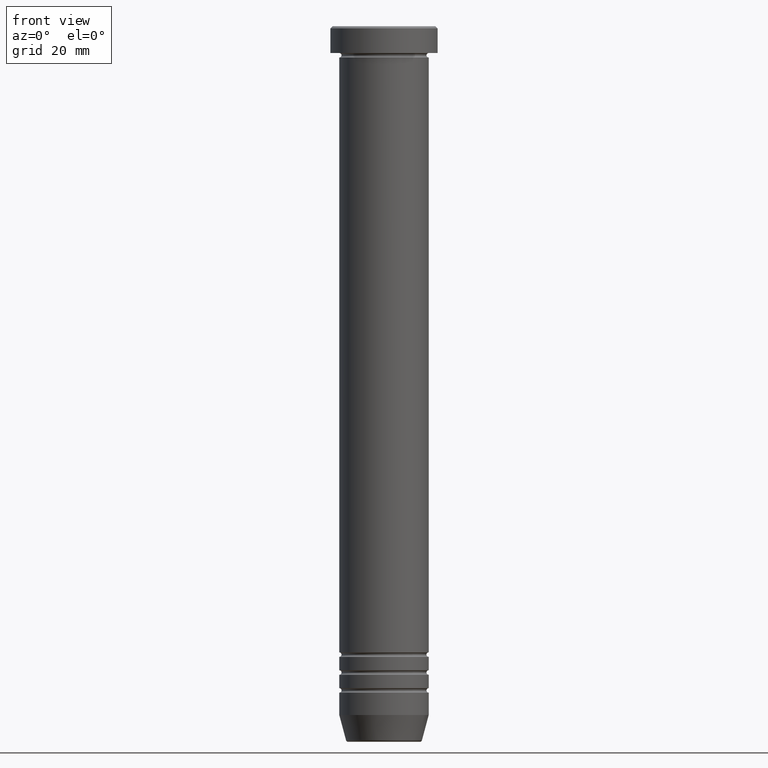
[diagram: clean part render]
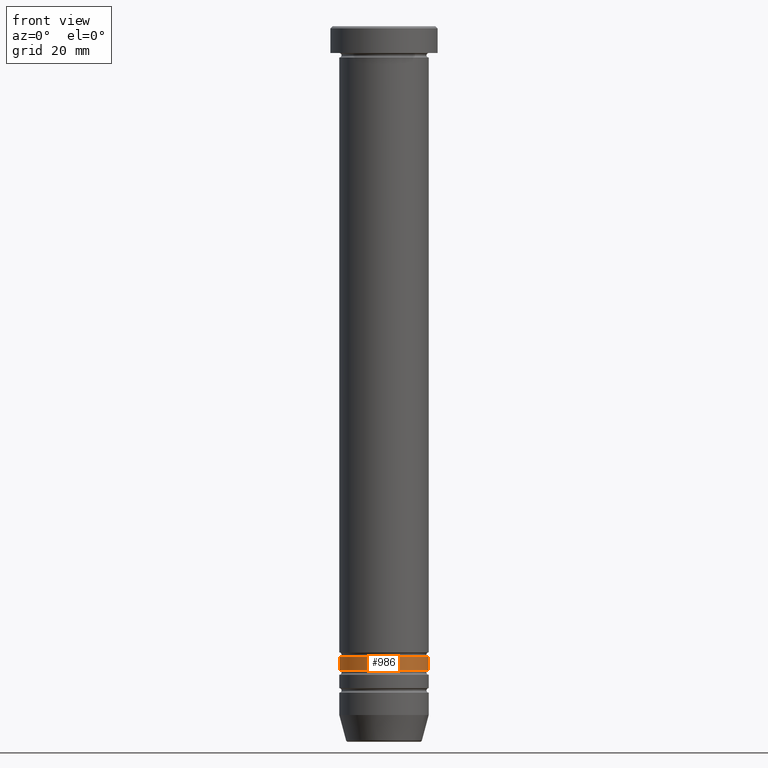
[diagram: same view with one face highlighted and labeled with its STEP entity id]
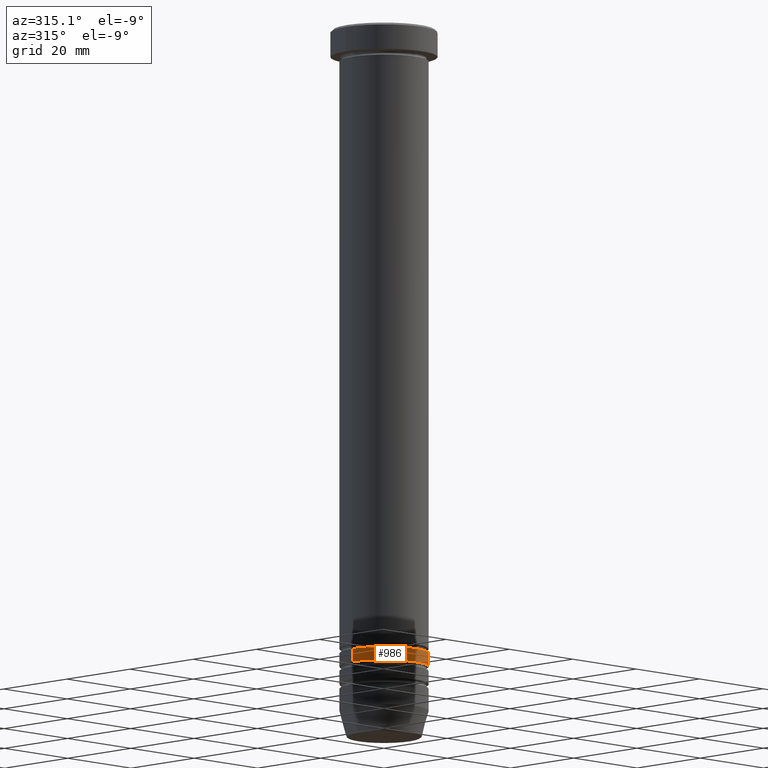
[diagram: same view with one face highlighted and labeled with its STEP entity id]
A machine part, front view. The second image highlights one B-rep face of the part: STEP entity #986.
A second angle (auxiliary view) of the same face is appended — the face is thin or edge-on in the first view.
In plain terms, the highlighted cylindrical surface (partial cylindrical patch) has radius 10 mm, axis along (-0, -0, 1).
Its self-contained STEP definition (entity closure, byte-faithful):
#10 = ORIENTED_EDGE ( 'NONE', *, *, #26, .T. ) ;
#14 = VERTEX_POINT ( 'NONE', #998 ) ;
#26 = EDGE_CURVE ( 'NONE', #702, #151, #523, .T. ) ;
#50 = CARTESIAN_POINT ( 'NONE',  ( 0.000000000000000000, 0.000000000000000000, -144.0000000000000284 ) ) ;
#131 = CARTESIAN_POINT ( 'NONE',  ( 10.00000000000000000, 0.000000000000000000, -141.0000000000000000 ) ) ;
#151 = VERTEX_POINT ( 'NONE', #131 ) ;
#169 = EDGE_CURVE ( 'NONE', #980, #14, #656, .T. ) ;
#224 = CIRCLE ( 'NONE', #446, 9.999999999999998224 ) ;
#276 = DIRECTION ( 'NONE',  ( -0.000000000000000000, -0.000000000000000000, 1.000000000000000000 ) ) ;
#285 = EDGE_CURVE ( 'NONE', #14, #151, #653, .T. ) ;
#306 = AXIS2_PLACEMENT_3D ( 'NONE', #363, #613, #1009 ) ;
#325 = DIRECTION ( 'NONE',  ( -0.000000000000000000, -0.000000000000000000, 1.000000000000000000 ) ) ;
#326 = EDGE_LOOP ( 'NONE', ( #369, #468, #10, #715 ) ) ;
#332 = DIRECTION ( 'NONE',  ( -0.000000000000000000, -0.000000000000000000, 1.000000000000000000 ) ) ;
#363 = CARTESIAN_POINT ( 'NONE',  ( 0.000000000000000000, 0.000000000000000000, 0.000000000000000000 ) ) ;
#369 = ORIENTED_EDGE ( 'NONE', *, *, #169, .F. ) ;
#402 = CARTESIAN_POINT ( 'NONE',  ( 9.999999999999998224, 0.000000000000000000, -144.0000000000000284 ) ) ;
#406 = CARTESIAN_POINT ( 'NONE',  ( 0.000000000000000000, 0.000000000000000000, -141.0000000000000000 ) ) ;
#422 = EDGE_CURVE ( 'NONE', #980, #702, #224, .T. ) ;
#438 = CARTESIAN_POINT ( 'NONE',  ( 9.999999999999998224, 0.000000000000000000, 0.000000000000000000 ) ) ;
#446 = AXIS2_PLACEMENT_3D ( 'NONE', #50, #842, #944 ) ;
#468 = ORIENTED_EDGE ( 'NONE', *, *, #422, .T. ) ;
#517 = VECTOR ( 'NONE', #276, 1000.000000000000000 ) ;
#523 = LINE ( 'NONE', #438, #517 ) ;
#578 = DIRECTION ( 'NONE',  ( 1.000000000000000000, 0.000000000000000000, 0.000000000000000000 ) ) ;
#613 = DIRECTION ( 'NONE',  ( -0.000000000000000000, -0.000000000000000000, 1.000000000000000000 ) ) ;
#653 = CIRCLE ( 'NONE', #738, 10.00000000000000000 ) ;
#656 = LINE ( 'NONE', #735, #915 ) ;
#684 = CYLINDRICAL_SURFACE ( 'NONE', #306, 9.999999999999998224 ) ;
#702 = VERTEX_POINT ( 'NONE', #402 ) ;
#715 = ORIENTED_EDGE ( 'NONE', *, *, #285, .F. ) ;
#735 = CARTESIAN_POINT ( 'NONE',  ( -9.999999999999998224, 1.224646799147353059E-15, 0.000000000000000000 ) ) ;
#738 = AXIS2_PLACEMENT_3D ( 'NONE', #406, #325, #578 ) ;
#757 = CARTESIAN_POINT ( 'NONE',  ( -9.999999999999998224, 1.224646799147353059E-15, -144.0000000000000284 ) ) ;
#842 = DIRECTION ( 'NONE',  ( -0.000000000000000000, -0.000000000000000000, 1.000000000000000000 ) ) ;
#915 = VECTOR ( 'NONE', #332, 1000.000000000000000 ) ;
#944 = DIRECTION ( 'NONE',  ( 1.000000000000000000, 0.000000000000000000, 0.000000000000000000 ) ) ;
#980 = VERTEX_POINT ( 'NONE', #757 ) ;
#986 = ADVANCED_FACE ( 'NONE', ( #1014 ), #684, .T. ) ;
#998 = CARTESIAN_POINT ( 'NONE',  ( -10.00000000000000000, 1.224646799147353256E-15, -141.0000000000000000 ) ) ;
#1009 = DIRECTION ( 'NONE',  ( 1.000000000000000000, 0.000000000000000000, 0.000000000000000000 ) ) ;
#1014 = FACE_OUTER_BOUND ( 'NONE', #326, .T. ) ;